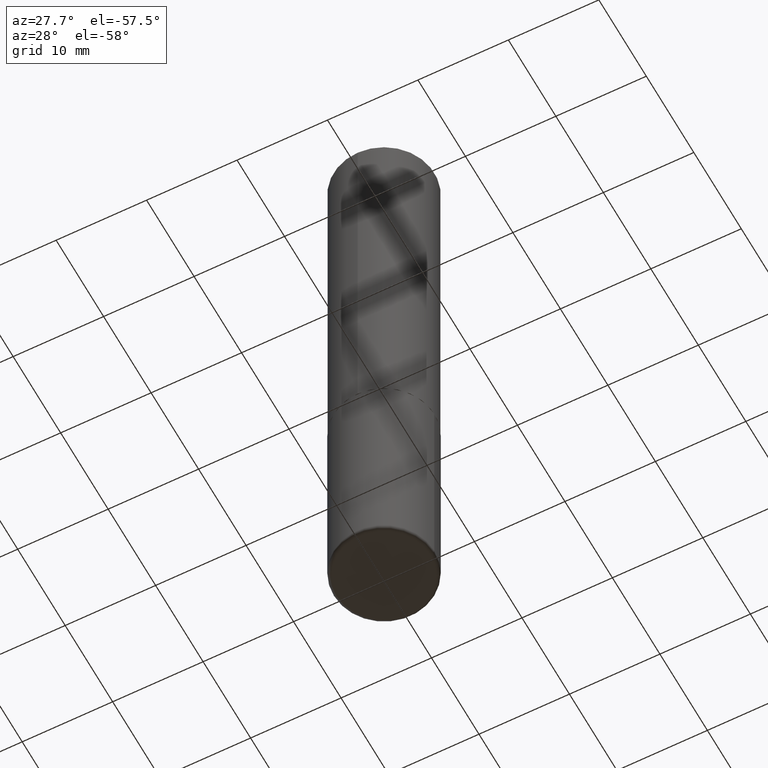
[diagram: clean part render]
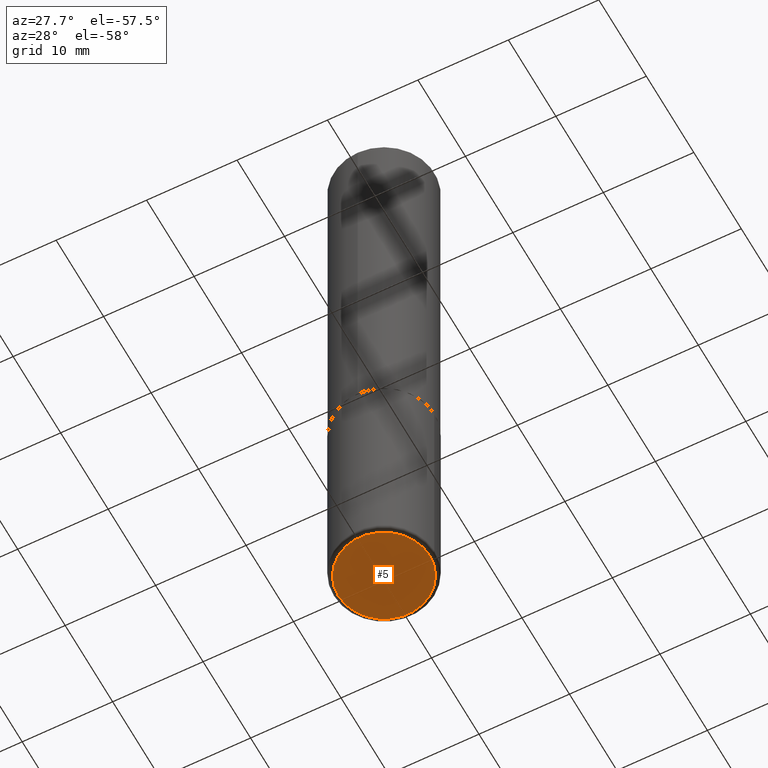
[diagram: same view with one face highlighted and labeled with its STEP entity id]
A machine part, auxiliary view. The second image highlights one B-rep face of the part: STEP entity #5.
In plain terms, the highlighted planar face has unit normal (0, -0, -1).
Its self-contained STEP definition (entity closure, byte-faithful):
#5 = ADVANCED_FACE ( 'NONE', ( #87 ), #303, .T. ) ;
#12 = CARTESIAN_POINT ( 'NONE',  ( 6.725039217009124520E-29, -9.601573681818649859E-15, -2.750000000000000000 ) ) ;
#20 = CARTESIAN_POINT ( 'NONE',  ( -0.1987500000000000100, -8.083400907531010713E-15, -2.750000000000000000 ) ) ;
#24 = VERTEX_POINT ( 'NONE', #27 ) ;
#27 = CARTESIAN_POINT ( 'NONE',  ( 0.1987500000000000100, -1.098943751400879489E-14, -2.750000000000000000 ) ) ;
#38 = DIRECTION ( 'NONE',  ( 1.000000000000000000, -6.982962677686265133E-15, 0.000000000000000000 ) ) ;
#87 = FACE_OUTER_BOUND ( 'NONE', #252, .T. ) ;
#91 = DIRECTION ( 'NONE',  ( 1.000000000000000000, -6.982962677686265133E-15, 0.000000000000000000 ) ) ;
#96 = DIRECTION ( 'NONE',  ( -2.445468806185136597E-29, 3.491481338843145583E-15, 1.000000000000000000 ) ) ;
#110 = AXIS2_PLACEMENT_3D ( 'NONE', #234, #324, #38 ) ;
#120 = ORIENTED_EDGE ( 'NONE', *, *, #147, .F. ) ;
#130 = ORIENTED_EDGE ( 'NONE', *, *, #289, .F. ) ;
#147 = EDGE_CURVE ( 'NONE', #24, #249, #180, .T. ) ;
#178 = AXIS2_PLACEMENT_3D ( 'NONE', #12, #186, #373 ) ;
#180 = CIRCLE ( 'NONE', #110, 0.1987500000000000100 ) ;
#186 = DIRECTION ( 'NONE',  ( 2.438088387897960049E-29, -3.491481338843145188E-15, -1.000000000000000000 ) ) ;
#234 = CARTESIAN_POINT ( 'NONE',  ( 6.725039217009124520E-29, -9.601573681818649859E-15, -2.750000000000000000 ) ) ;
#249 = VERTEX_POINT ( 'NONE', #20 ) ;
#252 = EDGE_LOOP ( 'NONE', ( #120, #130 ) ) ;
#289 = EDGE_CURVE ( 'NONE', #249, #24, #312, .T. ) ;
#303 = PLANE ( 'NONE',  #178 ) ;
#304 = AXIS2_PLACEMENT_3D ( 'NONE', #379, #96, #91 ) ;
#312 = CIRCLE ( 'NONE', #304, 0.1987500000000000100 ) ;
#324 = DIRECTION ( 'NONE',  ( -2.445468806185136597E-29, 3.491481338843145583E-15, 1.000000000000000000 ) ) ;
#373 = DIRECTION ( 'NONE',  ( -1.000000000000000000, 6.982962677686265922E-15, -4.876176775795935793E-29 ) ) ;
#379 = CARTESIAN_POINT ( 'NONE',  ( 6.725039217009124520E-29, -9.601573681818649859E-15, -2.750000000000000000 ) ) ;